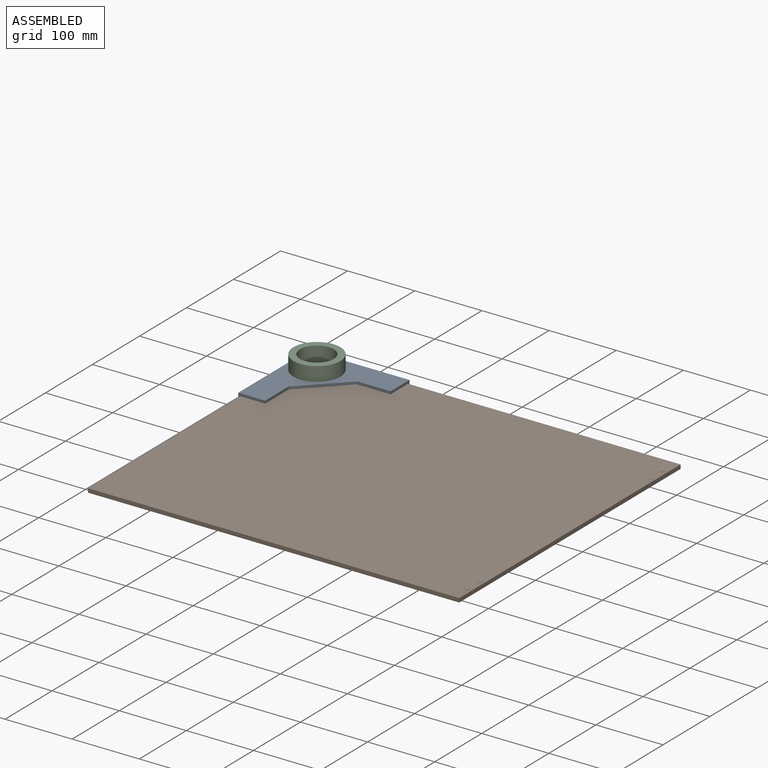
[diagram: assembled view]
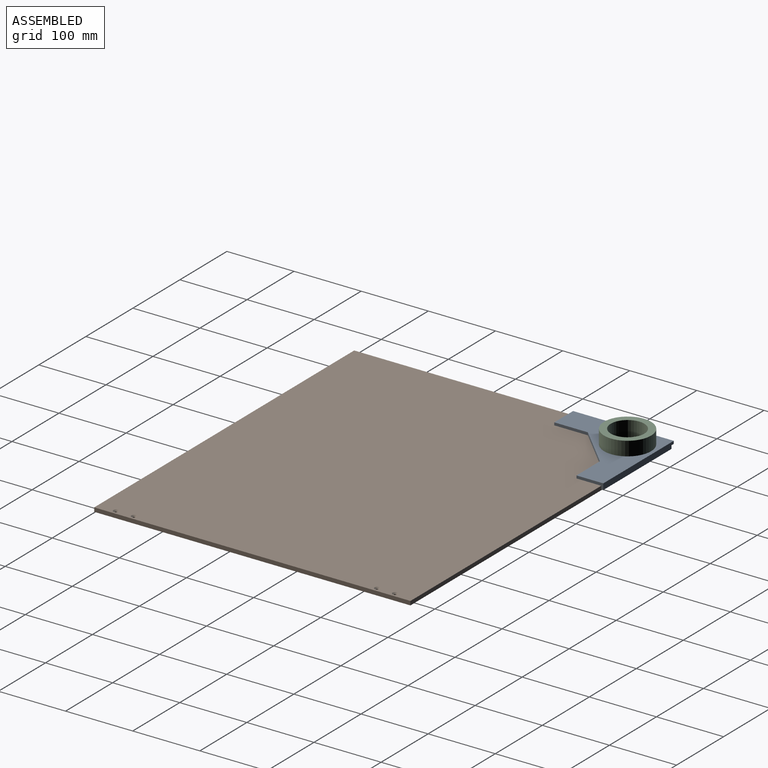
[diagram: assembled view, second angle]
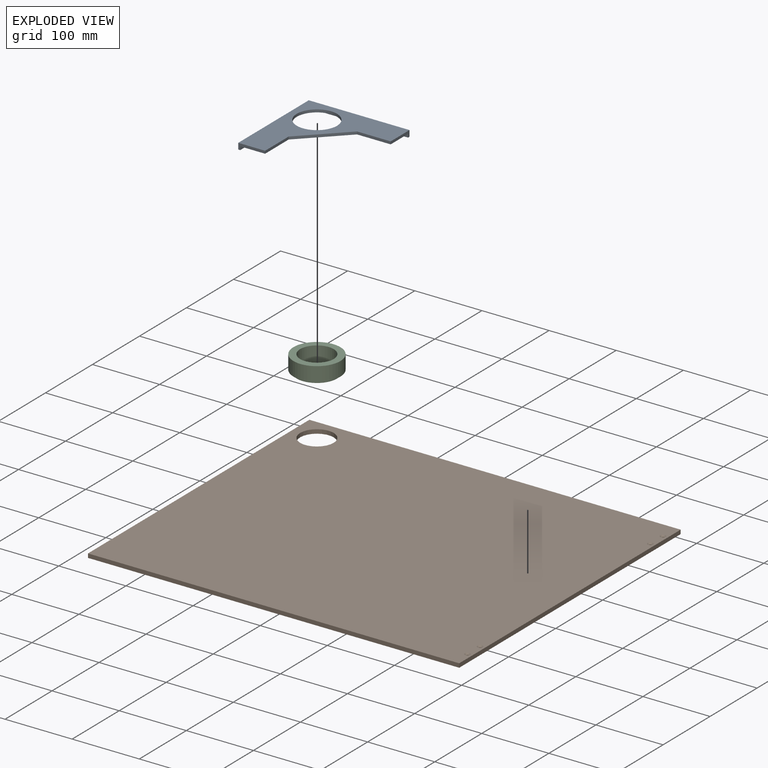
[diagram: exploded view]
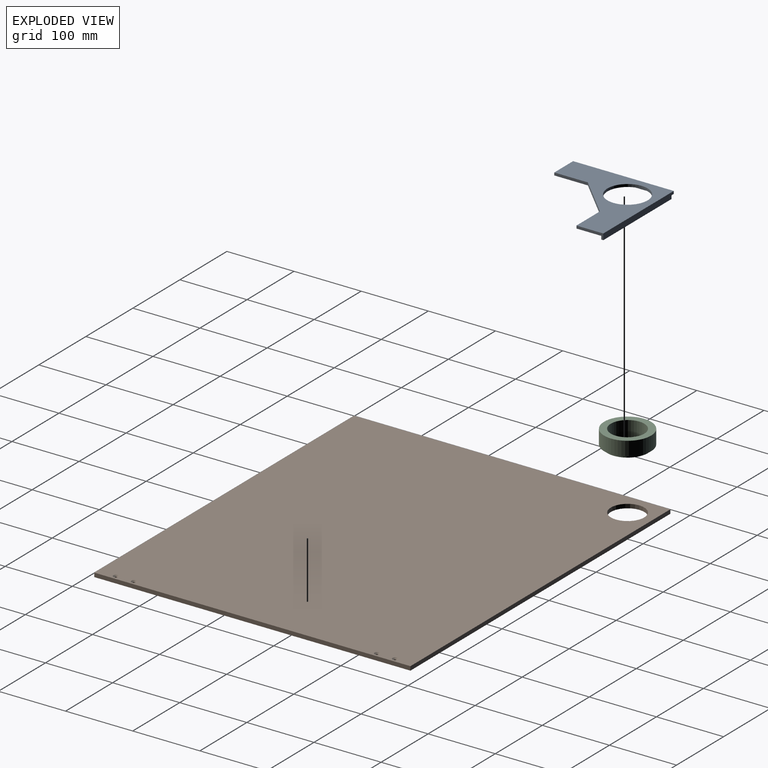
[diagram: exploded view, second angle]
ASSEMBLY  parts=3 mates=2
PART A: 16 faces, bbox 150x150x9 mm
  f0: plane 150x150mm, normal (0,0,1), area 8511.6mm2, adj f1,f2,f4,f6,f8,f9,f10,f11
  f1: plane 150x9mm, normal (1,0,0), area 1325mm2, adj f0,f2,f3,f7,f8,f15
  f2: plane 150x9mm, normal (0,1,0), area 1325mm2, adj f0,f1,f3,f5,f9,f13
  f3: plane 150x150mm, normal (0,0,-1), area 9372.6mm2, adj f1,f2,f10,f11,f12,f13,f14,f15
  f4: plane 142x5mm, normal (0,-1,0), area 710mm2, adj f0,f5,f9,f13
  f5: plane 145x3mm, normal (0,0,1), area 430.5mm2, adj f2,f4,f9,f13
  f6: plane 142x5mm, normal (-1,0,0), area 710mm2, adj f0,f7,f8,f15
  f7: plane 145x3mm, normal (0,0,1), area 430.5mm2, adj f1,f6,f8,f15
  f8: plane 5x3mm, normal (-0.71,0.71,0), area 21.2mm2, adj f0,f1,f6,f7
  f9: plane 5x3mm, normal (0.71,-0.71,0), area 21.2mm2, adj f0,f2,f4,f5
  f10: cylinder r=30mm len=60mm, axis (0,0,1), area 754mm2, adj f0,f3
  f11: plane 60x60mm, normal (-0.71,-0.71,0), area 339.4mm2, adj f0,f3,f12,f14
  f12: plane 50x4mm, normal (0,-1,0), area 200mm2, adj f0,f3,f11,f13
  f13: plane 40x9mm, normal (-1,0,0), area 175mm2, adj f0,f2,f3,f4,f5,f12
  f14: plane 50x4mm, normal (-1,0,0), area 200mm2, adj f0,f3,f11,f15
  f15: plane 40x9mm, normal (0,-1,0), area 175mm2, adj f0,f1,f3,f6,f7,f14
PART B: 15 faces, bbox 553x471x6 mm
  f0: plane 553x6mm, normal (0,1,0), area 3318mm2, adj f1,f3,f4,f5
  f1: plane 471x6mm, normal (-1,0,0), area 2826mm2, adj f0,f2,f4,f5
  f2: plane 553x6mm, normal (0,-1,0), area 3318mm2, adj f1,f3,f4,f5
  f3: plane 471x6mm, normal (1,0,0), area 2826mm2, adj f0,f2,f4,f5
  f4: plane 553.01x471.01mm, normal (0,0,1), area 258300.4mm2, adj f0,f1,f2,f3,f6,f11,f12,f13
  f5: plane 553x471mm, normal (0,0,-1), area 258449.4mm2, adj f0,f1,f2,f3,f6,f7,f8,f9
  f6: cylinder r=25mm len=50mm, axis (0,0,1), area 942.5mm2, adj f4,f5
  f7: extruded ~4x4mm, area 50.2mm2, adj f5,f14
  f8: extruded ~4x4mm, area 50.2mm2, adj f5,f13
  f9: extruded ~4x4mm, area 50.2mm2, adj f5,f12
  f10: extruded ~4x4mm, area 50.2mm2, adj f5,f11
  f11: bspline ~8x7.99mm, area 53.2mm2, adj f4,f10
  f12: bspline ~8x7.99mm, area 53.2mm2, adj f4,f9
  f13: bspline ~8x7.99mm, area 53.2mm2, adj f4,f8
  f14: bspline ~8x7.99mm, area 53.2mm2, adj f4,f7
PART C: 6 faces, bbox 70x70x25 mm
  f0: cylinder r=29.95mm len=59.9mm, axis (0,0,-1), area 752.7mm2, adj f2,f5
  f1: cylinder r=25mm len=50mm, axis (0,0,-1), area 3927mm2, adj f2,f3
  f2: plane 59.9x59.9mm, normal (0,0,1), area 854.5mm2, adj f0,f1
  f3: plane 70x70mm, normal (0,0,-1), area 1885mm2, adj f1,f4
  f4: cylinder r=35mm len=70mm, axis (0,0,-1), area 4618.1mm2, adj f3,f5
  f5: plane 70x70mm, normal (0,0,1), area 1030.4mm2, adj f0,f4
PLACE A rot(axis=(0,1,0),180deg) t=(-123.72,144.24,-151.03)mm
PLACE B t=(-170.72,191.24,-161.03)mm
PLACE C rot(axis=(1,0,0),180deg) t=(-60.97,84.08,-130.03)mm
MATE fastened A.f0 <-> B.f4  axis (0,0,-1) through (-173.72,194.24,-155.03)mm
MATE fastened C.f0 <-> B.f6  axis (0,0,-1) through (-133.22,153.74,-155.03)mm
